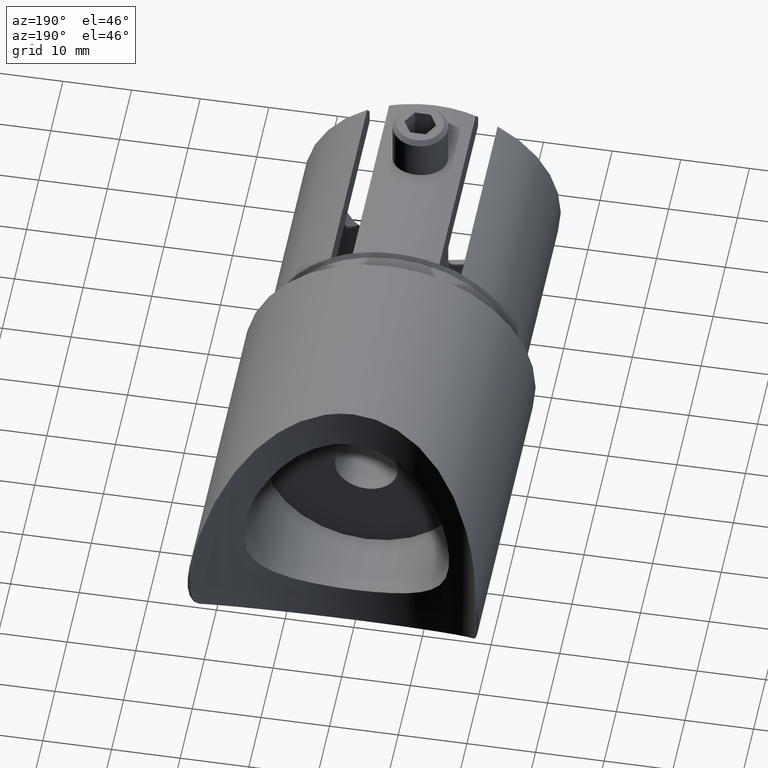
[diagram: clean part render]
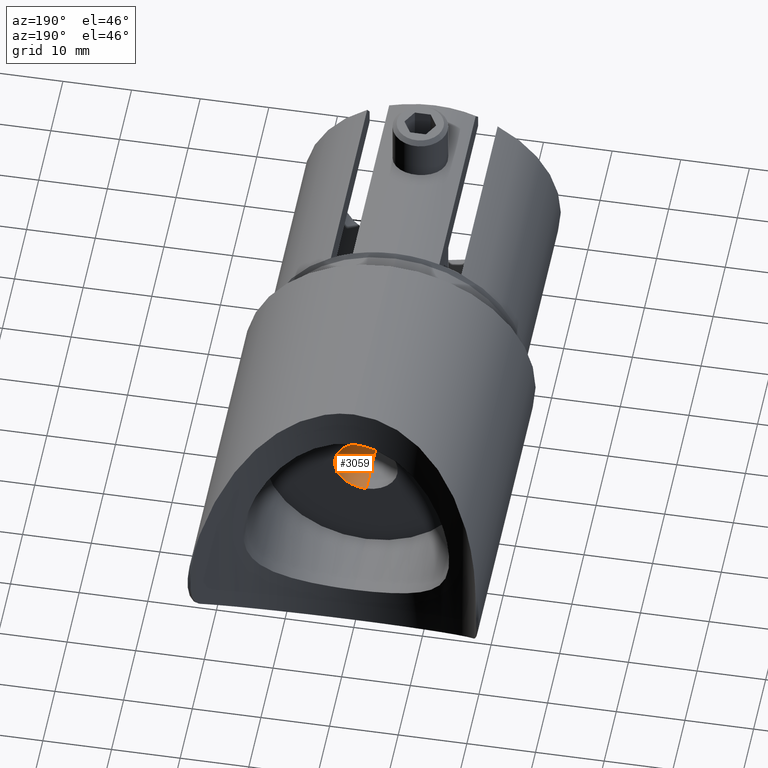
[diagram: same view with one face highlighted and labeled with its STEP entity id]
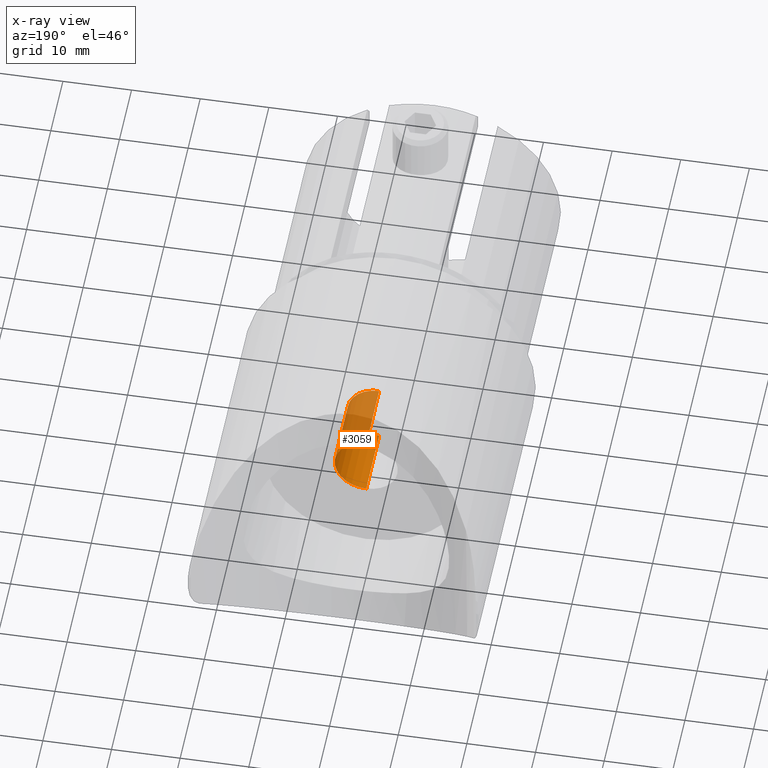
[diagram: x-ray of the same camera — body ghosted, the highlighted face saturated]
A machine part, auxiliary view. The second image highlights one B-rep face of the part: STEP entity #3059.
The next image is the same camera in x-ray: the body ghosted, the highlighted face saturated — about 54% of this face is hidden behind the body in this view.
In plain terms, the highlighted cylindrical surface (edge-blend (fillet) strip) has radius 4.6 mm, axis along (0, 1, 0).
Its self-contained STEP definition (entity closure, byte-faithful):
#304 = AXIS2_PLACEMENT_3D ( 'NONE', #8351, #9471, #10689 ) ;
#568 = AXIS2_PLACEMENT_3D ( 'NONE', #8361, #5300, #5344 ) ;
#748 = CARTESIAN_POINT ( 'NONE',  ( 0.0000000000000000000, 0.0000000000000000000, 0.0000000000000000000 ) ) ;
#797 = DIRECTION ( 'NONE',  ( 0.0000000000000000000, 0.0000000000000000000, 1.000000000000000000 ) ) ;
#1944 = EDGE_CURVE ( 'NONE', #3114, #6268, #12921, .T. ) ;
#2610 = ORIENTED_EDGE ( 'NONE', *, *, #1944, .T. ) ;
#3059 = ADVANCED_FACE ( 'NONE', ( #7677 ), #11204, .F. ) ;
#3079 = DIRECTION ( 'NONE',  ( -0.0000000000000000000, 1.000000000000000000, -0.0000000000000000000 ) ) ;
#3114 = VERTEX_POINT ( 'NONE', #8397 ) ;
#3126 = CARTESIAN_POINT ( 'NONE',  ( 5.633375276077824100E-016, 9.000000000000001800, -4.599999999999999600 ) ) ;
#3229 = VERTEX_POINT ( 'NONE', #8709 ) ;
#3866 = CARTESIAN_POINT ( 'NONE',  ( 0.0000000000000000000, 19.69999999999999900, 4.599999999999999600 ) ) ;
#3940 = CIRCLE ( 'NONE', #304, 4.599999999999999600 ) ;
#4089 = DIRECTION ( 'NONE',  ( -0.0000000000000000000, 1.000000000000000000, -0.0000000000000000000 ) ) ;
#4840 = EDGE_CURVE ( 'NONE', #12937, #3229, #7649, .T. ) ;
#5300 = DIRECTION ( 'NONE',  ( 0.0000000000000000000, 1.000000000000000000, 0.0000000000000000000 ) ) ;
#5344 = DIRECTION ( 'NONE',  ( 0.0000000000000000000, 0.0000000000000000000, 1.000000000000000000 ) ) ;
#5360 = ORIENTED_EDGE ( 'NONE', *, *, #9386, .T. ) ;
#6268 = VERTEX_POINT ( 'NONE', #3866 ) ;
#7146 = VECTOR ( 'NONE', #4089, 1000.000000000000000 ) ;
#7649 = LINE ( 'NONE', #11525, #7146 ) ;
#7677 = FACE_OUTER_BOUND ( 'NONE', #11624, .T. ) ;
#8351 = CARTESIAN_POINT ( 'NONE',  ( 0.0000000000000000000, 9.000000000000001800, 0.0000000000000000000 ) ) ;
#8361 = CARTESIAN_POINT ( 'NONE',  ( 0.0000000000000000000, 19.69999999999999900, 0.0000000000000000000 ) ) ;
#8397 = CARTESIAN_POINT ( 'NONE',  ( 0.0000000000000000000, 9.000000000000001800, 4.599999999999999600 ) ) ;
#8709 = CARTESIAN_POINT ( 'NONE',  ( 5.633375276077824100E-016, 19.69999999999999900, -4.599999999999999600 ) ) ;
#9386 = EDGE_CURVE ( 'NONE', #6268, #3229, #11998, .T. ) ;
#9471 = DIRECTION ( 'NONE',  ( -0.0000000000000000000, 1.000000000000000000, -0.0000000000000000000 ) ) ;
#10386 = VECTOR ( 'NONE', #3079, 1000.000000000000000 ) ;
#10561 = CARTESIAN_POINT ( 'NONE',  ( 0.0000000000000000000, 0.0000000000000000000, 4.599999999999999600 ) ) ;
#10625 = ORIENTED_EDGE ( 'NONE', *, *, #4840, .F. ) ;
#10689 = DIRECTION ( 'NONE',  ( 0.0000000000000000000, 0.0000000000000000000, -1.000000000000000000 ) ) ;
#10802 = EDGE_CURVE ( 'NONE', #3114, #12937, #3940, .T. ) ;
#11204 = CYLINDRICAL_SURFACE ( 'NONE', #12455, 4.599999999999999600 ) ;
#11525 = CARTESIAN_POINT ( 'NONE',  ( 5.633375276077824100E-016, 0.0000000000000000000, -4.599999999999999600 ) ) ;
#11624 = EDGE_LOOP ( 'NONE', ( #10625, #11928, #2610, #5360 ) ) ;
#11928 = ORIENTED_EDGE ( 'NONE', *, *, #10802, .F. ) ;
#11998 = CIRCLE ( 'NONE', #568, 4.599999999999999600 ) ;
#12392 = DIRECTION ( 'NONE',  ( -0.0000000000000000000, 1.000000000000000000, -0.0000000000000000000 ) ) ;
#12455 = AXIS2_PLACEMENT_3D ( 'NONE', #748, #12392, #797 ) ;
#12921 = LINE ( 'NONE', #10561, #10386 ) ;
#12937 = VERTEX_POINT ( 'NONE', #3126 ) ;